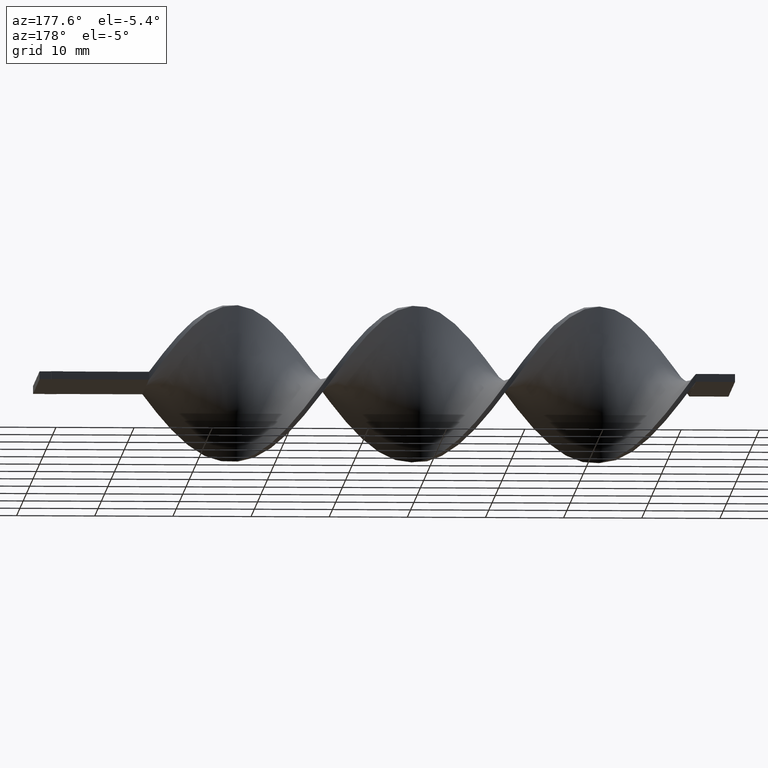
[diagram: clean part render]
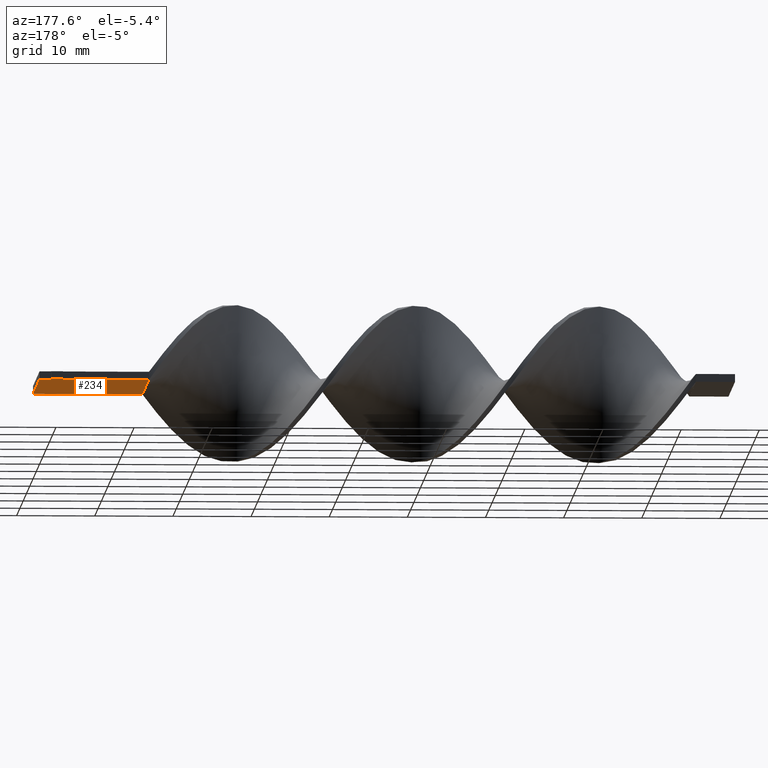
[diagram: same view with one face highlighted and labeled with its STEP entity id]
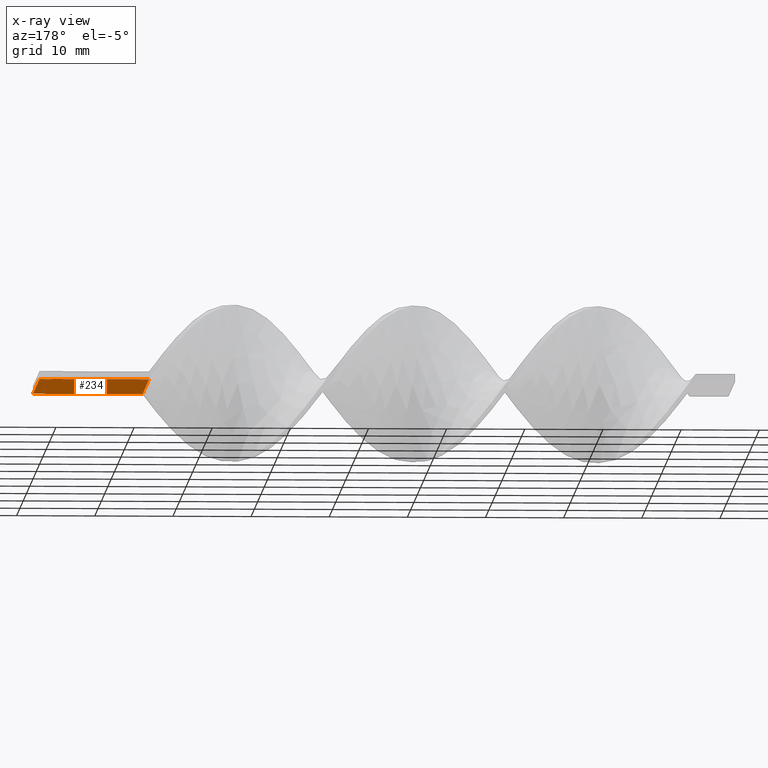
[diagram: x-ray of the same camera — body ghosted, the highlighted face saturated]
A machine part, auxiliary view. The second image highlights one B-rep face of the part: STEP entity #234.
The next image is the same camera in x-ray: the body ghosted, the highlighted face saturated — about 0% of this face is hidden behind the body in this view.
In plain terms, the highlighted planar face has unit normal (0, 0, 1).
Its self-contained STEP definition (entity closure, byte-faithful):
#3 = VECTOR ( 'NONE', #1575, 1000.000000000000000 ) ;
#10 = ORIENTED_EDGE ( 'NONE', *, *, #709, .T. ) ;
#63 = LINE ( 'NONE', #690, #1208 ) ;
#68 = DIRECTION ( 'NONE',  ( -1.000000000000000000, -1.577021341797097067E-16, 0.000000000000000000 ) ) ;
#70 = DIRECTION ( 'NONE',  ( -1.224646799147353207E-16, 1.000000000000000000, 0.000000000000000000 ) ) ;
#74 = CARTESIAN_POINT ( 'NONE',  ( -13.99999999999999822, 9.999999999999998224, -0.5000000000000000000 ) ) ;
#82 = VECTOR ( 'NONE', #323, 1000.000000000000000 ) ;
#89 = CARTESIAN_POINT ( 'NONE',  ( -1.499999999999993339, -10.00000000000000000, -0.5000000000000000000 ) ) ;
#96 = ORIENTED_EDGE ( 'NONE', *, *, #1156, .F. ) ;
#108 = VECTOR ( 'NONE', #1522, 1000.000000000000000 ) ;
#132 = VERTEX_POINT ( 'NONE', #154 ) ;
#133 = EDGE_CURVE ( 'NONE', #410, #1269, #779, .T. ) ;
#154 = CARTESIAN_POINT ( 'NONE',  ( -2.999999999999993339, -10.30000000000000071, -0.5000000000000000000 ) ) ;
#160 = DIRECTION ( 'NONE',  ( 0.000000000000000000, 0.000000000000000000, 1.000000000000000000 ) ) ;
#169 = CARTESIAN_POINT ( 'NONE',  ( -2.999999999999995559, 10.30000000000000071, -0.5000000000000000000 ) ) ;
#196 = CARTESIAN_POINT ( 'NONE',  ( -2.449293598294706513E-15, 10.00000000000000000, -0.5000000000000000000 ) ) ;
#199 = DIRECTION ( 'NONE',  ( 0.000000000000000000, 1.000000000000000000, 0.000000000000000000 ) ) ;
#203 = CARTESIAN_POINT ( 'NONE',  ( 0.000000000000000000, -10.00000000000000000, -0.5000000000000000000 ) ) ;
#234 = ADVANCED_FACE ( 'NONE', ( #388 ), #246, .F. ) ;
#243 = ORIENTED_EDGE ( 'NONE', *, *, #792, .T. ) ;
#246 = PLANE ( 'NONE',  #1325 ) ;
#261 = ORIENTED_EDGE ( 'NONE', *, *, #573, .T. ) ;
#274 = VERTEX_POINT ( 'NONE', #1160 ) ;
#284 = VECTOR ( 'NONE', #199, 1000.000000000000000 ) ;
#286 = VECTOR ( 'NONE', #292, 1000.000000000000000 ) ;
#292 = DIRECTION ( 'NONE',  ( -1.000000000000000000, 0.000000000000000000, 0.000000000000000000 ) ) ;
#297 = LINE ( 'NONE', #1164, #108 ) ;
#316 = DIRECTION ( 'NONE',  ( -1.000000000000000000, 0.000000000000000000, 0.000000000000000000 ) ) ;
#323 = DIRECTION ( 'NONE',  ( -1.000000000000000000, 0.000000000000000000, 0.000000000000000000 ) ) ;
#327 = DIRECTION ( 'NONE',  ( 7.228014483236698528E-16, -1.000000000000000000, 0.000000000000000000 ) ) ;
#347 = ORIENTED_EDGE ( 'NONE', *, *, #1321, .F. ) ;
#353 = LINE ( 'NONE', #581, #1106 ) ;
#361 = ORIENTED_EDGE ( 'NONE', *, *, #1374, .F. ) ;
#363 = CARTESIAN_POINT ( 'NONE',  ( -2.999999999999993339, -10.00000000000000000, -0.5000000000000000000 ) ) ;
#388 = FACE_OUTER_BOUND ( 'NONE', #1174, .T. ) ;
#401 = VECTOR ( 'NONE', #316, 1000.000000000000000 ) ;
#410 = VERTEX_POINT ( 'NONE', #1419 ) ;
#422 = VECTOR ( 'NONE', #1615, 1000.000000000000000 ) ;
#478 = VERTEX_POINT ( 'NONE', #169 ) ;
#479 = LINE ( 'NONE', #1470, #1566 ) ;
#487 = ORIENTED_EDGE ( 'NONE', *, *, #627, .F. ) ;
#546 = ORIENTED_EDGE ( 'NONE', *, *, #675, .F. ) ;
#554 = LINE ( 'NONE', #1310, #284 ) ;
#569 = LINE ( 'NONE', #719, #3 ) ;
#573 = EDGE_CURVE ( 'NONE', #647, #577, #678, .T. ) ;
#577 = VERTEX_POINT ( 'NONE', #1581 ) ;
#581 = CARTESIAN_POINT ( 'NONE',  ( 0.000000000000000000, -10.00000000000000000, -0.5000000000000000000 ) ) ;
#619 = VERTEX_POINT ( 'NONE', #1348 ) ;
#627 = EDGE_CURVE ( 'NONE', #1579, #1458, #353, .T. ) ;
#647 = VERTEX_POINT ( 'NONE', #1592 ) ;
#661 = DIRECTION ( 'NONE',  ( 1.000000000000000000, 0.000000000000000000, -0.000000000000000000 ) ) ;
#675 = EDGE_CURVE ( 'NONE', #1371, #619, #569, .T. ) ;
#678 = LINE ( 'NONE', #89, #962 ) ;
#690 = CARTESIAN_POINT ( 'NONE',  ( -13.99999999999999822, 9.999999999999998224, -0.5000000000000000000 ) ) ;
#693 = LINE ( 'NONE', #1193, #1212 ) ;
#709 = EDGE_CURVE ( 'NONE', #577, #132, #479, .T. ) ;
#719 = CARTESIAN_POINT ( 'NONE',  ( -1.499999999999995781, 10.00000000000000000, -0.5000000000000000000 ) ) ;
#779 = LINE ( 'NONE', #363, #422 ) ;
#792 = EDGE_CURVE ( 'NONE', #1579, #647, #1326, .T. ) ;
#803 = CARTESIAN_POINT ( 'NONE',  ( -2.449293598294706513E-15, 10.00000000000000000, -0.5000000000000000000 ) ) ;
#837 = VERTEX_POINT ( 'NONE', #74 ) ;
#908 = EDGE_CURVE ( 'NONE', #478, #274, #297, .T. ) ;
#949 = DIRECTION ( 'NONE',  ( -1.000000000000000000, 0.000000000000000000, 0.000000000000000000 ) ) ;
#962 = VECTOR ( 'NONE', #327, 1000.000000000000000 ) ;
#983 = ORIENTED_EDGE ( 'NONE', *, *, #133, .T. ) ;
#996 = CARTESIAN_POINT ( 'NONE',  ( -13.99999999999999645, -10.00000000000000178, -0.5000000000000000000 ) ) ;
#1049 = LINE ( 'NONE', #1168, #82 ) ;
#1087 = EDGE_CURVE ( 'NONE', #132, #410, #554, .T. ) ;
#1106 = VECTOR ( 'NONE', #70, 1000.000000000000000 ) ;
#1156 = EDGE_CURVE ( 'NONE', #837, #1269, #63, .T. ) ;
#1158 = CARTESIAN_POINT ( 'NONE',  ( 0.000000000000000000, -10.00000000000000000, -0.5000000000000000000 ) ) ;
#1160 = CARTESIAN_POINT ( 'NONE',  ( -2.999999999999995559, 10.00000000000000000, -0.5000000000000000000 ) ) ;
#1164 = CARTESIAN_POINT ( 'NONE',  ( -2.999999999999995559, 10.30000000000000071, -0.5000000000000000000 ) ) ;
#1168 = CARTESIAN_POINT ( 'NONE',  ( -1.499999999999995781, 10.30000000000000071, -0.5000000000000000000 ) ) ;
#1174 = EDGE_LOOP ( 'NONE', ( #243, #261, #10, #1211, #983, #96, #1214, #1589, #347, #546, #361, #487 ) ) ;
#1193 = CARTESIAN_POINT ( 'NONE',  ( -2.999999999999995559, 10.00000000000000000, -0.5000000000000000000 ) ) ;
#1202 = DIRECTION ( 'NONE',  ( 8.673617379884035472E-17, -1.000000000000000000, 0.000000000000000000 ) ) ;
#1208 = VECTOR ( 'NONE', #1202, 1000.000000000000000 ) ;
#1211 = ORIENTED_EDGE ( 'NONE', *, *, #1087, .T. ) ;
#1212 = VECTOR ( 'NONE', #68, 1000.000000000000000 ) ;
#1214 = ORIENTED_EDGE ( 'NONE', *, *, #1501, .F. ) ;
#1268 = CARTESIAN_POINT ( 'NONE',  ( 0.000000000000000000, 0.000000000000000000, -0.5000000000000000000 ) ) ;
#1269 = VERTEX_POINT ( 'NONE', #996 ) ;
#1310 = CARTESIAN_POINT ( 'NONE',  ( -2.999999999999993339, -10.30000000000000071, -0.5000000000000000000 ) ) ;
#1321 = EDGE_CURVE ( 'NONE', #619, #478, #1049, .T. ) ;
#1325 = AXIS2_PLACEMENT_3D ( 'NONE', #1268, #160, #661 ) ;
#1326 = LINE ( 'NONE', #203, #401 ) ;
#1348 = CARTESIAN_POINT ( 'NONE',  ( -1.499999999999995781, 10.30000000000000071, -0.5000000000000000000 ) ) ;
#1371 = VERTEX_POINT ( 'NONE', #1431 ) ;
#1374 = EDGE_CURVE ( 'NONE', #1458, #1371, #1418, .T. ) ;
#1418 = LINE ( 'NONE', #803, #286 ) ;
#1419 = CARTESIAN_POINT ( 'NONE',  ( -2.999999999999993339, -10.00000000000000000, -0.5000000000000000000 ) ) ;
#1431 = CARTESIAN_POINT ( 'NONE',  ( -1.499999999999995781, 10.00000000000000000, -0.5000000000000000000 ) ) ;
#1458 = VERTEX_POINT ( 'NONE', #196 ) ;
#1470 = CARTESIAN_POINT ( 'NONE',  ( -1.499999999999993117, -10.30000000000000071, -0.5000000000000000000 ) ) ;
#1501 = EDGE_CURVE ( 'NONE', #274, #837, #693, .T. ) ;
#1522 = DIRECTION ( 'NONE',  ( 0.000000000000000000, -1.000000000000000000, 0.000000000000000000 ) ) ;
#1566 = VECTOR ( 'NONE', #949, 1000.000000000000000 ) ;
#1575 = DIRECTION ( 'NONE',  ( 0.000000000000000000, 1.000000000000000000, 0.000000000000000000 ) ) ;
#1579 = VERTEX_POINT ( 'NONE', #1158 ) ;
#1581 = CARTESIAN_POINT ( 'NONE',  ( -1.499999999999993117, -10.30000000000000071, -0.5000000000000000000 ) ) ;
#1589 = ORIENTED_EDGE ( 'NONE', *, *, #908, .F. ) ;
#1592 = CARTESIAN_POINT ( 'NONE',  ( -1.499999999999993339, -10.00000000000000000, -0.5000000000000000000 ) ) ;
#1615 = DIRECTION ( 'NONE',  ( -1.000000000000000000, -1.577021341797097067E-16, 0.000000000000000000 ) ) ;